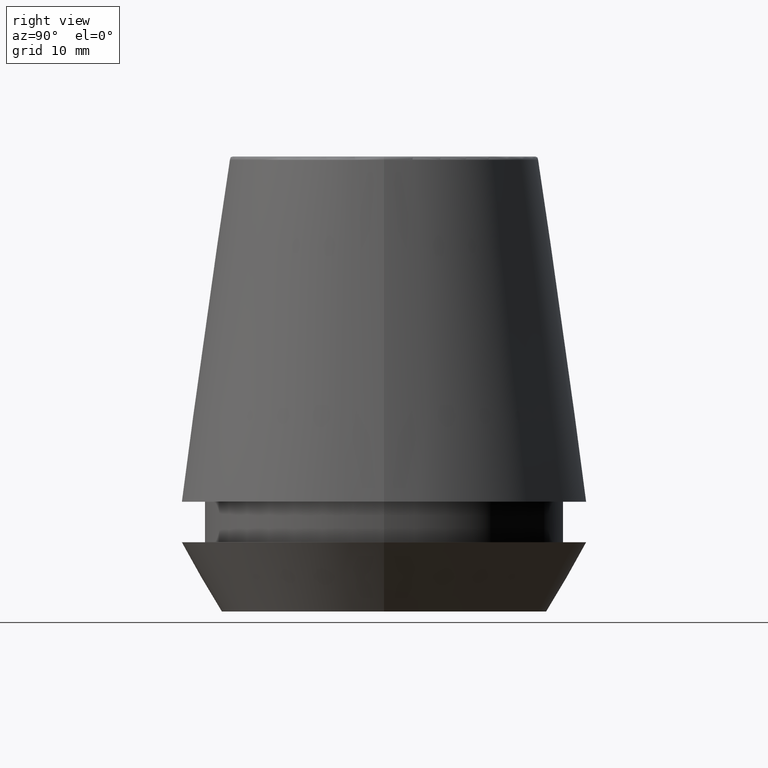
[diagram: clean part render]
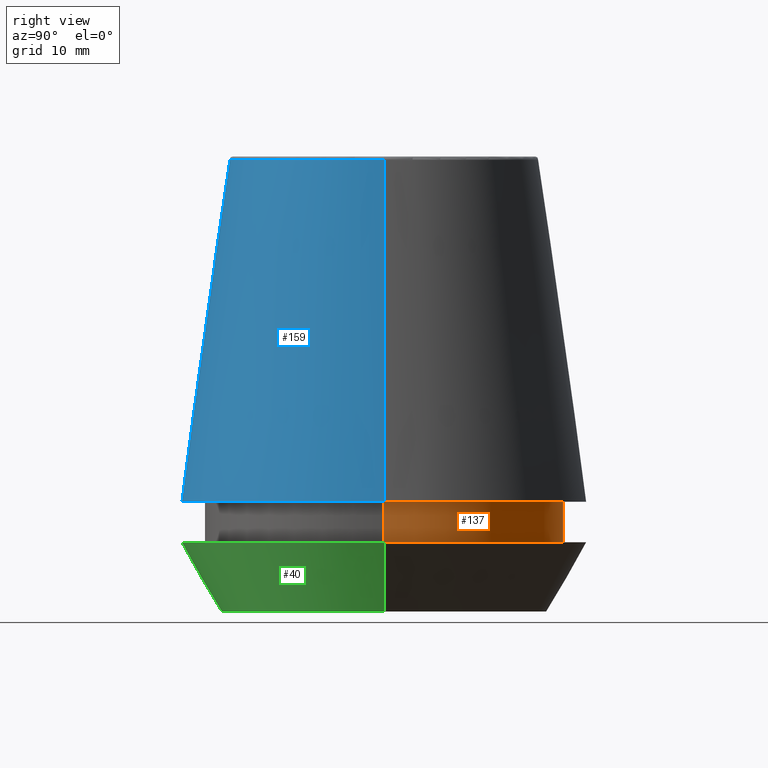
[diagram: same view with three faces highlighted in distinct colors, each labeled with its STEP entity id]
A machine part, right view with three faces highlighted in distinct colors.
Their STEP definitions:

[orange] entity #137 — the highlighted cylindrical surface (partial cylindrical patch) has radius 18.1 mm, axis along (-0, -0, 1).
#12 = DIRECTION ( 'NONE',  ( 1.000000000000000000, 0.0000000000000000000, 0.0000000000000000000 ) ) ;
#14 = VECTOR ( 'NONE', #229, 1000.000000000000000 ) ;
#17 = DIRECTION ( 'NONE',  ( 1.000000000000000000, 0.0000000000000000000, 0.0000000000000000000 ) ) ;
#18 = CARTESIAN_POINT ( 'NONE',  ( -18.10000000000000500, 2.216610706456710000E-015, 11.09999999999999800 ) ) ;
#19 = ORIENTED_EDGE ( 'NONE', *, *, #358, .T. ) ;
#34 = EDGE_CURVE ( 'NONE', #214, #162, #282, .T. ) ;
#54 = CARTESIAN_POINT ( 'NONE',  ( -18.10000000000000500, 2.216610706456710000E-015, 46.00000000000000000 ) ) ;
#67 = CYLINDRICAL_SURFACE ( 'NONE', #244, 18.10000000000000500 ) ;
#68 = ORIENTED_EDGE ( 'NONE', *, *, #34, .F. ) ;
#75 = VERTEX_POINT ( 'NONE', #186 ) ;
#82 = VERTEX_POINT ( 'NONE', #100 ) ;
#84 = AXIS2_PLACEMENT_3D ( 'NONE', #370, #194, #12 ) ;
#87 = EDGE_CURVE ( 'NONE', #82, #75, #121, .T. ) ;
#95 = LINE ( 'NONE', #349, #240 ) ;
#100 = CARTESIAN_POINT ( 'NONE',  ( 18.10000000000000100, 0.0000000000000000000, 6.999999999999999100 ) ) ;
#108 = LINE ( 'NONE', #54, #14 ) ;
#115 = EDGE_LOOP ( 'NONE', ( #224, #19, #68, #145 ) ) ;
#121 = CIRCLE ( 'NONE', #84, 18.10000000000000100 ) ;
#137 = ADVANCED_FACE ( 'NONE', ( #228 ), #67, .T. ) ;
#145 = ORIENTED_EDGE ( 'NONE', *, *, #360, .F. ) ;
#162 = VERTEX_POINT ( 'NONE', #18 ) ;
#175 = CARTESIAN_POINT ( 'NONE',  ( 0.0000000000000000000, 0.0000000000000000000, 11.09999999999999800 ) ) ;
#186 = CARTESIAN_POINT ( 'NONE',  ( -18.10000000000000100, 2.216610706456709600E-015, 6.999999999999999100 ) ) ;
#194 = DIRECTION ( 'NONE',  ( -0.0000000000000000000, -0.0000000000000000000, 1.000000000000000000 ) ) ;
#199 = CARTESIAN_POINT ( 'NONE',  ( 0.0000000000000000000, 0.0000000000000000000, 46.00000000000000000 ) ) ;
#200 = DIRECTION ( 'NONE',  ( 1.000000000000000000, 0.0000000000000000000, 0.0000000000000000000 ) ) ;
#214 = VERTEX_POINT ( 'NONE', #277 ) ;
#224 = ORIENTED_EDGE ( 'NONE', *, *, #87, .T. ) ;
#228 = FACE_OUTER_BOUND ( 'NONE', #115, .T. ) ;
#229 = DIRECTION ( 'NONE',  ( -0.0000000000000000000, -0.0000000000000000000, 1.000000000000000000 ) ) ;
#240 = VECTOR ( 'NONE', #359, 1000.000000000000000 ) ;
#244 = AXIS2_PLACEMENT_3D ( 'NONE', #199, #375, #17 ) ;
#277 = CARTESIAN_POINT ( 'NONE',  ( 18.10000000000000500, 0.0000000000000000000, 11.09999999999999800 ) ) ;
#282 = CIRCLE ( 'NONE', #328, 18.10000000000000500 ) ;
#328 = AXIS2_PLACEMENT_3D ( 'NONE', #175, #383, #200 ) ;
#349 = CARTESIAN_POINT ( 'NONE',  ( 18.10000000000000500, 0.0000000000000000000, 46.00000000000000000 ) ) ;
#358 = EDGE_CURVE ( 'NONE', #75, #162, #108, .T. ) ;
#359 = DIRECTION ( 'NONE',  ( -0.0000000000000000000, -0.0000000000000000000, 1.000000000000000000 ) ) ;
#360 = EDGE_CURVE ( 'NONE', #82, #214, #95, .T. ) ;
#370 = CARTESIAN_POINT ( 'NONE',  ( 0.0000000000000000000, 0.0000000000000000000, 6.999999999999999100 ) ) ;
#375 = DIRECTION ( 'NONE',  ( -0.0000000000000000000, -0.0000000000000000000, 1.000000000000000000 ) ) ;
#383 = DIRECTION ( 'NONE',  ( -0.0000000000000000000, -0.0000000000000000000, 1.000000000000000000 ) ) ;

[blue] entity #159 — the highlighted conical surface has half-angle 8 deg.
#5 = CARTESIAN_POINT ( 'NONE',  ( -20.50032537154048700, 0.0000000000000000000, 11.09999999999999800 ) ) ;
#6 = EDGE_CURVE ( 'NONE', #290, #125, #141, .T. ) ;
#20 = CARTESIAN_POINT ( 'NONE',  ( 20.50032537154048700, 2.510565784773633700E-015, 11.09999999999999800 ) ) ;
#21 = CARTESIAN_POINT ( 'NONE',  ( -15.64384277279740400, 0.0000000000000000000, 45.65566924038402900 ) ) ;
#25 = VECTOR ( 'NONE', #166, 1000.000000000000000 ) ;
#31 = VECTOR ( 'NONE', #36, 1000.000000000000000 ) ;
#36 = DIRECTION ( 'NONE',  ( -0.1391731009600587200, 0.0000000000000000000, -0.9902680687415712500 ) ) ;
#38 = ORIENTED_EDGE ( 'NONE', *, *, #6, .T. ) ;
#44 = CIRCLE ( 'NONE', #387, 15.64384277279740400 ) ;
#45 = EDGE_LOOP ( 'NONE', ( #70, #369, #386, #38 ) ) ;
#61 = EDGE_CURVE ( 'NONE', #362, #347, #44, .T. ) ;
#63 = EDGE_CURVE ( 'NONE', #362, #290, #266, .T. ) ;
#70 = ORIENTED_EDGE ( 'NONE', *, *, #340, .F. ) ;
#72 = DIRECTION ( 'NONE',  ( -0.0000000000000000000, -0.0000000000000000000, 1.000000000000000000 ) ) ;
#111 = DIRECTION ( 'NONE',  ( -1.000000000000000000, 0.0000000000000000000, 0.0000000000000000000 ) ) ;
#118 = DIRECTION ( 'NONE',  ( 1.000000000000000000, 0.0000000000000000000, 0.0000000000000000000 ) ) ;
#124 = AXIS2_PLACEMENT_3D ( 'NONE', #144, #285, #118 ) ;
#125 = VERTEX_POINT ( 'NONE', #352 ) ;
#136 = CARTESIAN_POINT ( 'NONE',  ( 0.0000000000000000000, 0.0000000000000000000, 11.09999999999999800 ) ) ;
#138 = CARTESIAN_POINT ( 'NONE',  ( -20.50032537154048700, 0.0000000000000000000, 11.09999999999999800 ) ) ;
#141 = CIRCLE ( 'NONE', #124, 20.50032537154048700 ) ;
#142 = FACE_OUTER_BOUND ( 'NONE', #45, .T. ) ;
#144 = CARTESIAN_POINT ( 'NONE',  ( 0.0000000000000000000, 0.0000000000000000000, 11.09999999999999800 ) ) ;
#159 = ADVANCED_FACE ( 'NONE', ( #142 ), #265, .T. ) ;
#166 = DIRECTION ( 'NONE',  ( 0.1391731009600587200, 1.704378926181473400E-017, -0.9902680687415712500 ) ) ;
#193 = CARTESIAN_POINT ( 'NONE',  ( 15.64384277279740400, 2.213191991290356800E-015, 45.65566924038402900 ) ) ;
#212 = AXIS2_PLACEMENT_3D ( 'NONE', #136, #279, #111 ) ;
#241 = CARTESIAN_POINT ( 'NONE',  ( 0.0000000000000000000, 0.0000000000000000000, 45.65566924038402900 ) ) ;
#265 = CONICAL_SURFACE ( 'NONE', #212, 20.50032537154048700, 0.1396263401595396200 ) ;
#266 = LINE ( 'NONE', #5, #31 ) ;
#270 = DIRECTION ( 'NONE',  ( 1.000000000000000000, 0.0000000000000000000, 0.0000000000000000000 ) ) ;
#279 = DIRECTION ( 'NONE',  ( 0.0000000000000000000, 0.0000000000000000000, -1.000000000000000000 ) ) ;
#285 = DIRECTION ( 'NONE',  ( -0.0000000000000000000, -0.0000000000000000000, 1.000000000000000000 ) ) ;
#290 = VERTEX_POINT ( 'NONE', #138 ) ;
#337 = LINE ( 'NONE', #20, #25 ) ;
#340 = EDGE_CURVE ( 'NONE', #347, #125, #337, .T. ) ;
#347 = VERTEX_POINT ( 'NONE', #193 ) ;
#352 = CARTESIAN_POINT ( 'NONE',  ( 20.50032537154048700, 2.510565784773633700E-015, 11.09999999999999800 ) ) ;
#362 = VERTEX_POINT ( 'NONE', #21 ) ;
#369 = ORIENTED_EDGE ( 'NONE', *, *, #61, .F. ) ;
#386 = ORIENTED_EDGE ( 'NONE', *, *, #63, .T. ) ;
#387 = AXIS2_PLACEMENT_3D ( 'NONE', #241, #72, #270 ) ;

[green] entity #40 — the highlighted conical surface has half-angle 30 deg.
#24 = CARTESIAN_POINT ( 'NONE',  ( 0.0000000000000000000, 0.0000000000000000000, 0.0000000000000000000 ) ) ;
#29 = AXIS2_PLACEMENT_3D ( 'NONE', #149, #356, #180 ) ;
#40 = ADVANCED_FACE ( 'NONE', ( #65 ), #197, .T. ) ;
#47 = CARTESIAN_POINT ( 'NONE',  ( -16.45854811567268100, 2.263058382549599700E-015, 0.0000000000000000000 ) ) ;
#49 = EDGE_CURVE ( 'NONE', #311, #60, #201, .T. ) ;
#51 = VERTEX_POINT ( 'NONE', #203 ) ;
#56 = CARTESIAN_POINT ( 'NONE',  ( 16.45854811567268100, 0.0000000000000000000, 0.0000000000000000000 ) ) ;
#57 = DIRECTION ( 'NONE',  ( 1.000000000000000000, 0.0000000000000000000, 0.0000000000000000000 ) ) ;
#60 = VERTEX_POINT ( 'NONE', #348 ) ;
#65 = FACE_OUTER_BOUND ( 'NONE', #204, .T. ) ;
#88 = CIRCLE ( 'NONE', #320, 16.45854811567268100 ) ;
#104 = EDGE_CURVE ( 'NONE', #157, #311, #88, .T. ) ;
#114 = ORIENTED_EDGE ( 'NONE', *, *, #104, .T. ) ;
#149 = CARTESIAN_POINT ( 'NONE',  ( 0.0000000000000000000, 0.0000000000000000000, 7.000000000000006200 ) ) ;
#155 = DIRECTION ( 'NONE',  ( 1.000000000000000000, 0.0000000000000000000, 0.0000000000000000000 ) ) ;
#157 = VERTEX_POINT ( 'NONE', #47 ) ;
#160 = DIRECTION ( 'NONE',  ( 0.4999999999999941700, 0.0000000000000000000, 0.8660254037844420400 ) ) ;
#179 = AXIS2_PLACEMENT_3D ( 'NONE', #268, #326, #155 ) ;
#180 = DIRECTION ( 'NONE',  ( 1.000000000000000000, 0.0000000000000000000, 0.0000000000000000000 ) ) ;
#188 = ORIENTED_EDGE ( 'NONE', *, *, #345, .F. ) ;
#197 = CONICAL_SURFACE ( 'NONE', #179, 16.45854811567268100, 0.5235987755982921500 ) ;
#201 = LINE ( 'NONE', #56, #351 ) ;
#203 = CARTESIAN_POINT ( 'NONE',  ( -20.50000000000000000, 2.510525938252074100E-015, 7.000000000000006200 ) ) ;
#204 = EDGE_LOOP ( 'NONE', ( #188, #114, #346, #221 ) ) ;
#221 = ORIENTED_EDGE ( 'NONE', *, *, #316, .F. ) ;
#230 = DIRECTION ( 'NONE',  ( -0.0000000000000000000, -0.0000000000000000000, 1.000000000000000000 ) ) ;
#249 = VECTOR ( 'NONE', #367, 1000.000000000000000 ) ;
#259 = LINE ( 'NONE', #332, #249 ) ;
#268 = CARTESIAN_POINT ( 'NONE',  ( 0.0000000000000000000, 0.0000000000000000000, 0.0000000000000000000 ) ) ;
#311 = VERTEX_POINT ( 'NONE', #344 ) ;
#316 = EDGE_CURVE ( 'NONE', #51, #60, #371, .T. ) ;
#320 = AXIS2_PLACEMENT_3D ( 'NONE', #24, #230, #57 ) ;
#326 = DIRECTION ( 'NONE',  ( -0.0000000000000000000, -0.0000000000000000000, 1.000000000000000000 ) ) ;
#332 = CARTESIAN_POINT ( 'NONE',  ( -16.45854811567268100, 2.015590826847124800E-015, 0.0000000000000000000 ) ) ;
#344 = CARTESIAN_POINT ( 'NONE',  ( 16.45854811567268100, 0.0000000000000000000, 0.0000000000000000000 ) ) ;
#345 = EDGE_CURVE ( 'NONE', #157, #51, #259, .T. ) ;
#346 = ORIENTED_EDGE ( 'NONE', *, *, #49, .T. ) ;
#348 = CARTESIAN_POINT ( 'NONE',  ( 20.50000000000000000, 0.0000000000000000000, 7.000000000000006200 ) ) ;
#351 = VECTOR ( 'NONE', #160, 1000.000000000000000 ) ;
#356 = DIRECTION ( 'NONE',  ( -0.0000000000000000000, -0.0000000000000000000, 1.000000000000000000 ) ) ;
#367 = DIRECTION ( 'NONE',  ( -0.4999999999999941700, 6.123233995736694500E-017, 0.8660254037844420400 ) ) ;
#371 = CIRCLE ( 'NONE', #29, 20.50000000000000000 ) ;